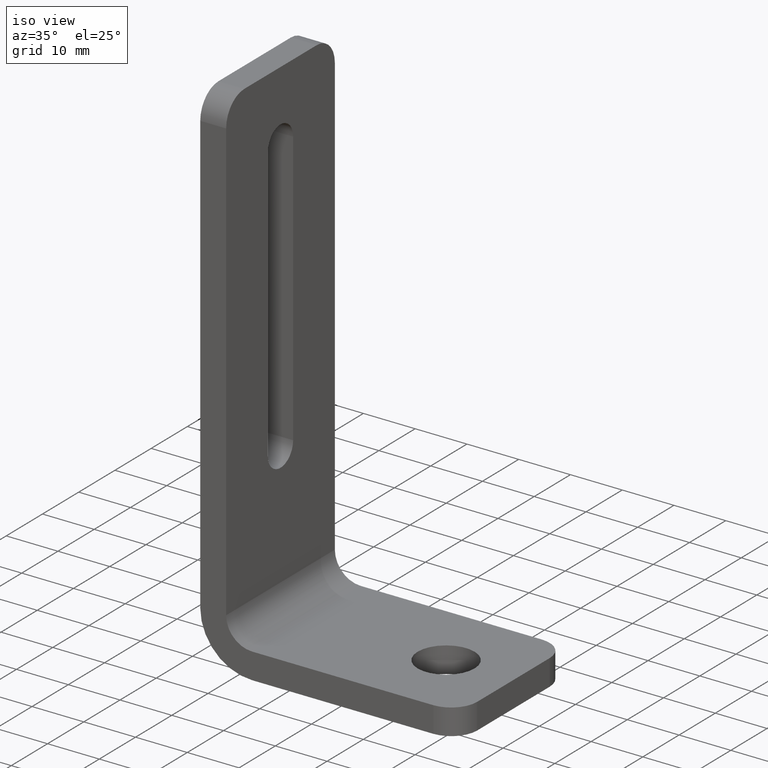
[diagram: clean part render]
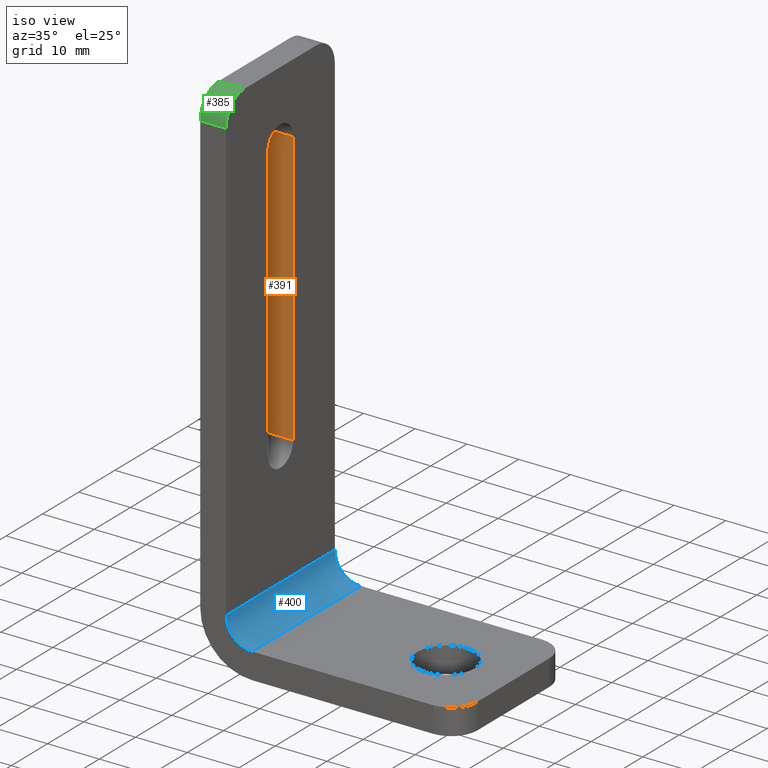
[diagram: same view with three faces highlighted in distinct colors, each labeled with its STEP entity id]
A machine part, iso view with three faces highlighted in distinct colors.
Their STEP definitions:

[orange] entity #391 — the highlighted planar face has unit normal (0, 1, 0).
#26=PLANE('',#428);
#45=FACE_OUTER_BOUND('',#70,.T.);
#70=EDGE_LOOP('',(#316,#317,#318,#319));
#105=LINE('',#630,#141);
#109=LINE('',#641,#145);
#111=LINE('',#647,#147);
#112=LINE('',#648,#148);
#141=VECTOR('',#504,53.);
#145=VECTOR('',#516,5.);
#147=VECTOR('',#522,5.);
#148=VECTOR('',#523,53.);
#196=VERTEX_POINT('',#623);
#199=VERTEX_POINT('',#628);
#202=VERTEX_POINT('',#640);
#204=VERTEX_POINT('',#646);
#239=EDGE_CURVE('',#199,#196,#105,.T.);
#244=EDGE_CURVE('',#196,#202,#109,.T.);
#247=EDGE_CURVE('',#199,#204,#111,.T.);
#248=EDGE_CURVE('',#202,#204,#112,.T.);
#316=ORIENTED_EDGE('',*,*,#239,.F.);
#317=ORIENTED_EDGE('',*,*,#247,.T.);
#318=ORIENTED_EDGE('',*,*,#248,.F.);
#319=ORIENTED_EDGE('',*,*,#244,.F.);
#391=ADVANCED_FACE('',(#45),#26,.F.);
#428=AXIS2_PLACEMENT_3D('',#645,#520,#521);
#504=DIRECTION('',(6.10148443209598E-17,0.,-1.));
#516=DIRECTION('',(-1.,0.,0.));
#520=DIRECTION('center_axis',(0.,1.,0.));
#521=DIRECTION('ref_axis',(0.,0.,-1.));
#522=DIRECTION('',(-1.,0.,0.));
#523=DIRECTION('',(-6.10148443209598E-17,0.,1.));
#623=CARTESIAN_POINT('',(-20.,3.5,33.5));
#628=CARTESIAN_POINT('',(-20.,3.5,86.5));
#630=CARTESIAN_POINT('',(-20.,3.5,67.625));
#640=CARTESIAN_POINT('',(-25.,3.5,33.5));
#641=CARTESIAN_POINT('',(-20.,3.5,33.5));
#645=CARTESIAN_POINT('Origin',(-20.,3.5,86.5));
#646=CARTESIAN_POINT('',(-25.,3.5,86.5));
#647=CARTESIAN_POINT('',(-20.,3.5,86.5));
#648=CARTESIAN_POINT('',(-25.,3.5,67.625));

[blue] entity #400 — the highlighted cylindrical surface (edge-blend (fillet) strip) has radius 5 mm, axis along (0, 1, 0).
#54=FACE_OUTER_BOUND('',#81,.T.);
#81=EDGE_LOOP('',(#356,#357,#358,#359));
#102=LINE('',#619,#138);
#119=LINE('',#674,#155);
#138=VECTOR('',#495,30.);
#155=VECTOR('',#560,30.);
#173=CIRCLE('',#439,5.);
#174=CIRCLE('',#441,5.);
#186=VERTEX_POINT('',#597);
#193=VERTEX_POINT('',#616);
#194=VERTEX_POINT('',#618);
#208=VERTEX_POINT('',#669);
#233=EDGE_CURVE('',#193,#194,#102,.T.);
#258=EDGE_CURVE('',#194,#186,#173,.T.);
#260=EDGE_CURVE('',#193,#208,#174,.T.);
#261=EDGE_CURVE('',#186,#208,#119,.T.);
#356=ORIENTED_EDGE('',*,*,#233,.F.);
#357=ORIENTED_EDGE('',*,*,#260,.T.);
#358=ORIENTED_EDGE('',*,*,#261,.F.);
#359=ORIENTED_EDGE('',*,*,#258,.F.);
#379=CYLINDRICAL_SURFACE('',#443,5.);
#400=ADVANCED_FACE('',(#54),#379,.F.);
#439=AXIS2_PLACEMENT_3D('',#667,#549,#550);
#441=AXIS2_PLACEMENT_3D('',#671,#554,#555);
#443=AXIS2_PLACEMENT_3D('',#673,#558,#559);
#495=DIRECTION('',(7.90757140046408E-19,1.,4.84199100230374E-35));
#549=DIRECTION('center_axis',(0.,-1.,0.));
#550=DIRECTION('ref_axis',(-1.,0.,0.));
#554=DIRECTION('center_axis',(0.,-1.,0.));
#555=DIRECTION('ref_axis',(-1.,0.,0.));
#558=DIRECTION('center_axis',(0.,1.,0.));
#559=DIRECTION('ref_axis',(0.,0.,-1.));
#560=DIRECTION('',(0.,-1.,0.));
#597=CARTESIAN_POINT('',(-15.,15.,5.));
#616=CARTESIAN_POINT('',(-20.,-15.,10.));
#618=CARTESIAN_POINT('',(-20.,15.,10.));
#619=CARTESIAN_POINT('',(-20.,-1.16942984047388E-18,10.));
#667=CARTESIAN_POINT('Origin',(-15.,15.,10.));
#669=CARTESIAN_POINT('',(-15.,-15.,5.));
#671=CARTESIAN_POINT('Origin',(-15.,-15.,10.));
#673=CARTESIAN_POINT('Origin',(-15.,0.,10.));
#674=CARTESIAN_POINT('',(-15.,-7.5,5.));

[green] entity #385 — the highlighted cylindrical surface (edge-blend (fillet) strip) has radius 5 mm, axis along (-1, 0, -0).
#39=FACE_OUTER_BOUND('',#63,.T.);
#63=EDGE_LOOP('',(#286,#287,#288,#289));
#96=LINE('',#605,#132);
#97=LINE('',#608,#133);
#132=VECTOR('',#483,5.);
#133=VECTOR('',#486,5.);
#162=CIRCLE('',#416,5.);
#163=CIRCLE('',#417,5.);
#187=VERTEX_POINT('',#601);
#188=VERTEX_POINT('',#602);
#189=VERTEX_POINT('',#604);
#190=VERTEX_POINT('',#606);
#225=EDGE_CURVE('',#187,#188,#162,.T.);
#226=EDGE_CURVE('',#188,#189,#96,.T.);
#227=EDGE_CURVE('',#189,#190,#163,.T.);
#228=EDGE_CURVE('',#190,#187,#97,.T.);
#286=ORIENTED_EDGE('',*,*,#225,.T.);
#287=ORIENTED_EDGE('',*,*,#226,.T.);
#288=ORIENTED_EDGE('',*,*,#227,.T.);
#289=ORIENTED_EDGE('',*,*,#228,.T.);
#373=CYLINDRICAL_SURFACE('',#415,5.);
#385=ADVANCED_FACE('',(#39),#373,.T.);
#415=AXIS2_PLACEMENT_3D('',#600,#479,#480);
#416=AXIS2_PLACEMENT_3D('',#603,#481,#482);
#417=AXIS2_PLACEMENT_3D('',#607,#484,#485);
#479=DIRECTION('center_axis',(-1.,0.,-6.12323399573677E-17));
#480=DIRECTION('ref_axis',(0.,-0.707106781186547,0.707106781186547));
#481=DIRECTION('center_axis',(1.,7.90757140046408E-19,6.10148443209598E-17));
#482=DIRECTION('ref_axis',(0.,-0.707106781186547,0.707106781186547));
#483=DIRECTION('',(1.,0.,6.12323399573677E-17));
#484=DIRECTION('center_axis',(-1.,7.90757140046408E-19,-6.10148443209598E-17));
#485=DIRECTION('ref_axis',(0.,-0.707106781186547,0.707106781186547));
#486=DIRECTION('',(-1.,0.,-6.12323399573677E-17));
#600=CARTESIAN_POINT('Origin',(-20.,-10.,95.));
#601=CARTESIAN_POINT('',(-25.,-10.,100.));
#602=CARTESIAN_POINT('',(-25.,-15.,95.));
#603=CARTESIAN_POINT('Origin',(-25.,-10.,95.));
#604=CARTESIAN_POINT('',(-20.,-15.,95.));
#605=CARTESIAN_POINT('',(-20.,-15.,95.));
#606=CARTESIAN_POINT('',(-20.,-10.,100.));
#607=CARTESIAN_POINT('Origin',(-20.,-10.,95.));
#608=CARTESIAN_POINT('',(-20.,-10.,100.));